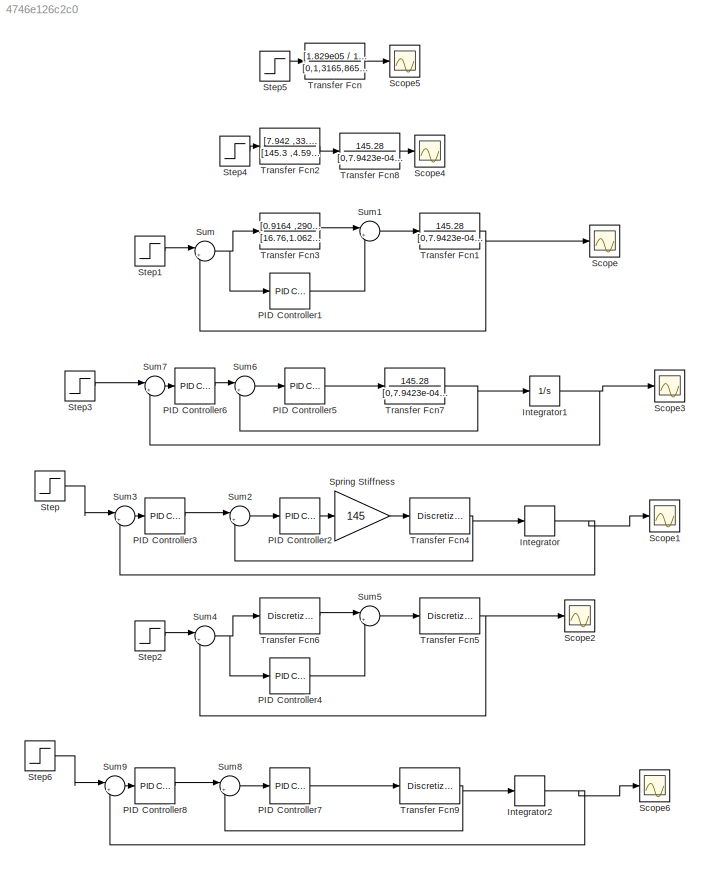
MODEL slx_4746e126c2c0
KIND model
CONFIG AbsTol = auto
CONFIG EnableMultiTasking = off
CONFIG FixedStep = auto
CONFIG MaxStep = auto
CONFIG MinStep = auto
CONFIG RelTol = 1e-3
CONFIG SampleTimeConstraint = Unconstrained
CONFIG Solver = VariableStepAuto
CONFIG SolverName = VariableStepAuto
CONFIG StartTime = 0.0
CONFIG StopTime = 10
BLOCK [DiscreteIntegrator] Integrator
  ICPrevOutput = DiscIntNeverNeededParam
  ICPrevScaledInput = DiscIntNeverNeededParam
  Ports = [1, 1]
  SampleTime = 0.01
BLOCK [Integrator] Integrator1
  Ports = [1, 1]
BLOCK [DiscreteIntegrator] Integrator2
  ICPrevOutput = DiscIntNeverNeededParam
  ICPrevScaledInput = DiscIntNeverNeededParam
  Ports = [1, 1]
  SampleTime = 0.01
BLOCK [Reference] PID Controller1  REF=simulink/Continuous/PID Controller
  Ports = [1, 1]
  SourceBlock = simulink/Continuous/PID Controller
  SourceType = PID 1dof
BLOCK [Reference] PID Controller2  REF=simulink/Continuous/PID Controller
  Ports = [1, 1]
  SourceBlock = simulink/Continuous/PID Controller
  SourceType = PID 1dof
BLOCK [Reference] PID Controller3  REF=simulink/Continuous/PID Controller
  Ports = [1, 1]
  SourceBlock = simulink/Continuous/PID Controller
  SourceType = PID 1dof
BLOCK [Reference] PID Controller4  REF=simulink/Continuous/PID Controller
  Ports = [1, 1]
  SourceBlock = simulink/Continuous/PID Controller
  SourceType = PID 1dof
BLOCK [Reference] PID Controller5  REF=simulink/Continuous/PID Controller
  Ports = [1, 1]
  SourceBlock = simulink/Continuous/PID Controller
  SourceType = PID 1dof
BLOCK [Reference] PID Controller6  REF=simulink/Continuous/PID Controller
  Ports = [1, 1]
  SourceBlock = simulink/Continuous/PID Controller
  SourceType = PID 1dof
BLOCK [Reference] PID Controller7  REF=simulink/Continuous/PID Controller
  Ports = [1, 1]
  SourceBlock = simulink/Continuous/PID Controller
  SourceType = PID 1dof
BLOCK [Reference] PID Controller8  REF=simulink/Continuous/PID Controller
  Ports = [1, 1]
  SourceBlock = simulink/Continuous/PID Controller
  SourceType = PID 1dof
BLOCK [Scope] Scope
  NumInputPorts = 1
  Ports = [1]
  ScopeSpecificationString = Simulink.scopes.TimeScopeBlockCfg('CurrentConfiguration', extmgr.ConfigurationSet(extmgr.Configuration('Core','General UI',true),extmgr.Configuration('Core','Source UI',true),extmgr.Configuration('Sources','WiredSimulink',true),extmgr.Configuration('Visuals','Time Domain',true,'SerializedDisplays',{struct('MinYLimReal','-129.19039','MaxYLimReal','1162.7135','YLabelReal','','MinYLimMag',' 0.00000',...<+1382ch>
BLOCK [Scope] Scope1
  NumInputPorts = 1
  Ports = [1]
  ScopeSpecificationString = Simulink.scopes.TimeScopeBlockCfg('CurrentConfiguration', extmgr.ConfigurationSet(extmgr.Configuration('Core','General UI',true),extmgr.Configuration('Core','Source UI',true),extmgr.Configuration('Sources','WiredSimulink',true,'DataLoggingVariableName','ScopeData1'),extmgr.Configuration('Visuals','Time Domain',true,'SerializedDisplays',{struct('MinYLimReal','-287.23276','MaxYLimReal','2585.09484',...<+1422ch>
BLOCK [Scope] Scope2
  NumInputPorts = 1
  Ports = [1]
  ScopeSpecificationString = Simulink.scopes.TimeScopeBlockCfg('CurrentConfiguration', extmgr.ConfigurationSet(extmgr.Configuration('Core','General UI',true),extmgr.Configuration('Core','Source UI',true),extmgr.Configuration('Sources','WiredSimulink',true,'DataLoggingVariableName','ScopeData1'),extmgr.Configuration('Visuals','Time Domain',true,'SerializedDisplays',{struct('MinYLimReal','-0.12786','MaxYLimReal','1.15076','YLab...<+1407ch>
BLOCK [Scope] Scope3
  NumInputPorts = 1
  Ports = [1]
  ScopeSpecificationString = Simulink.scopes.TimeScopeBlockCfg('CurrentConfiguration', extmgr.ConfigurationSet(extmgr.Configuration('Core','General UI',true),extmgr.Configuration('Core','Source UI',true),extmgr.Configuration('Sources','WiredSimulink',true,'DataLoggingVariableName','ScopeData2'),extmgr.Configuration('Visuals','Time Domain',true,'SerializedDisplays',{struct('MinYLimReal','-254.16461','MaxYLimReal','1487.25799',...<+1421ch>
BLOCK [Scope] Scope4
  NumInputPorts = 1
  Ports = [1]
  ScopeSpecificationString = Simulink.scopes.TimeScopeBlockCfg('CurrentConfiguration', extmgr.ConfigurationSet(extmgr.Configuration('Core','General UI',true),extmgr.Configuration('Core','Source UI',true),extmgr.Configuration('Sources','WiredSimulink',true,'DataLoggingVariableName','ScopeData1'),extmgr.Configuration('Visuals','Time Domain',true,'SerializedDisplays',{struct('MinYLimReal','-127.83792','MaxYLimReal','1150.54129',...<+1425ch>
BLOCK [Scope] Scope5
  NumInputPorts = 1
  Ports = [1]
  ScopeSpecificationString = Simulink.scopes.TimeScopeBlockCfg('CurrentConfiguration', extmgr.ConfigurationSet(extmgr.Configuration('Core','General UI',true),extmgr.Configuration('Core','Source UI',true),extmgr.Configuration('Sources','WiredSimulink',true,'DataLoggingVariableName','ScopeData2'),extmgr.Configuration('Visuals','Time Domain',true,'SerializedDisplays',{struct('MinYLimReal','-127.83792','MaxYLimReal','1150.54129',...<+1425ch>
BLOCK [Scope] Scope6
  NumInputPorts = 1
  Ports = [1]
  ScopeSpecificationString = Simulink.scopes.TimeScopeBlockCfg('CurrentConfiguration', extmgr.ConfigurationSet(extmgr.Configuration('Core','General UI',true),extmgr.Configuration('Core','Source UI',true),extmgr.Configuration('Sources','WiredSimulink',true,'DataLoggingVariableName','ScopeData1'),extmgr.Configuration('Visuals','Time Domain',true,'SerializedDisplays',{struct('MinYLimReal','-293.24046','MaxYLimReal','2639.13145',...<+1423ch>
BLOCK [Gain] Spring Stiffness
  Gain = 145
  OutDataTypeStr = Inherit: Inherit via internal rule
  ParamDataTypeStr = Inherit: Inherit via internal rule
  SaturateOnIntegerOverflow = off
BLOCK [Step] Step
  After = 2000
  SampleTime = 0.01
BLOCK [Step] Step1
  After = 1000
  SampleTime = 0
BLOCK [Step] Step2
  SampleTime = 0.04
BLOCK [Step] Step3
  After = 1000
  SampleTime = 0
BLOCK [Step] Step4
  After = 1000
  SampleTime = 0
BLOCK [Step] Step5
  After = 1000
  SampleTime = 0
BLOCK [Step] Step6
  After = 2000
  SampleTime = 0.01
BLOCK [Sum] Sum
  IconShape = round
  InputSameDT = off
  Inputs = |+-
  OutDataTypeStr = Inherit: Inherit via internal rule
  Ports = [2, 1]
  SaturateOnIntegerOverflow = off
BLOCK [Sum] Sum1
  IconShape = round
  InputSameDT = off
  Inputs = |++
  OutDataTypeStr = Inherit: Inherit via internal rule
  Ports = [2, 1]
  SaturateOnIntegerOverflow = off
BLOCK [Sum] Sum2
  IconShape = round
  InputSameDT = off
  Inputs = |+-
  OutDataTypeStr = Inherit: Inherit via internal rule
  Ports = [2, 1]
  SaturateOnIntegerOverflow = off
BLOCK [Sum] Sum3
  IconShape = round
  InputSameDT = off
  Inputs = |+-
  OutDataTypeStr = Inherit: Inherit via internal rule
  Ports = [2, 1]
  SaturateOnIntegerOverflow = off
BLOCK [Sum] Sum4
  IconShape = round
  InputSameDT = off
  Inputs = |+-
  OutDataTypeStr = Inherit: Inherit via internal rule
  Ports = [2, 1]
  SaturateOnIntegerOverflow = off
BLOCK [Sum] Sum5
  IconShape = round
  InputSameDT = off
  Inputs = |++
  OutDataTypeStr = Inherit: Inherit via internal rule
  Ports = [2, 1]
  SaturateOnIntegerOverflow = off
BLOCK [Sum] Sum6
  IconShape = round
  InputSameDT = off
  Inputs = |+-
  OutDataTypeStr = Inherit: Inherit via internal rule
  Ports = [2, 1]
  SaturateOnIntegerOverflow = off
BLOCK [Sum] Sum7
  IconShape = round
  InputSameDT = off
  Inputs = |+-
  OutDataTypeStr = Inherit: Inherit via internal rule
  Ports = [2, 1]
  SaturateOnIntegerOverflow = off
BLOCK [Sum] Sum8
  IconShape = round
  InputSameDT = off
  Inputs = |+-
  OutDataTypeStr = Inherit: Inherit via internal rule
  Ports = [2, 1]
  SaturateOnIntegerOverflow = off
BLOCK [Sum] Sum9
  IconShape = round
  InputSameDT = off
  Inputs = |+-
  OutDataTypeStr = Inherit: Inherit via internal rule
  Ports = [2, 1]
  SaturateOnIntegerOverflow = off
BLOCK [TransferFcn] Transfer Fcn
  Denominator = [0,1,3165,8653,1e04]
  Numerator = [1.829e05 / 18.29]
BLOCK [TransferFcn] Transfer Fcn1
  Denominator = [0,7.9423e-04,2*0.059068*0.028182,1,0]
  Numerator = 145.28
  SCDEnableBlockLinearizationSpecification = on
BLOCK [TransferFcn] Transfer Fcn2
  Denominator = [145.3 ,4.598e05,1.257e06 , 1.453e06]
  Numerator = [7.942  ,33.29  ,10000  ,0]
BLOCK [TransferFcn] Transfer Fcn3
  Denominator = [16.76,1.062e05 , 1.687e08 ,1.757e09 , 2.174e11 , 1.165e12 ,2.254e12 , 1.826e12  ]
  Numerator = [0.9164 ,2908 ,3.457e04 , 7.44e06,5.225e07,4.705e09 ,1.267e10, 1.453e10 ]
BLOCK [Reference] Transfer Fcn4  REF=discretizing/Discretized  (lib defined in mdl_5048aa1cd587)
Transfer Fcn
  Ports = [1, 1]
  SourceBlock = discretizing/Discretized\nTransfer Fcn
  SourceType = DiscretizedTransferFcn
BLOCK [Reference] Transfer Fcn5  REF=discretizing/Discretized  (lib defined in mdl_5048aa1cd587)
Transfer Fcn
  Ports = [1, 1]
  SourceBlock = discretizing/Discretized\nTransfer Fcn
  SourceType = DiscretizedTransferFcn
BLOCK [Reference] Transfer Fcn6  REF=discretizing/Discretized  (lib defined in mdl_5048aa1cd587)
Transfer Fcn
  Ports = [1, 1]
  SourceBlock = discretizing/Discretized\nTransfer Fcn
  SourceType = DiscretizedTransferFcn
BLOCK [TransferFcn] Transfer Fcn7
  Denominator = [0,7.9423e-04,2*0.059068*0.028182,1,0]
  Numerator = 145.28
  SCDEnableBlockLinearizationSpecification = on
BLOCK [TransferFcn] Transfer Fcn8
  Denominator = [0,7.9423e-04,2*0.059068*0.028182,1,0]
  Numerator = 145.28
BLOCK [Reference] Transfer Fcn9  REF=discretizing/Discretized  (lib defined in mdl_5048aa1cd587)
Transfer Fcn
  Ports = [1, 1]
  SourceBlock = discretizing/Discretized\nTransfer Fcn
  SourceType = DiscretizedTransferFcn
NET Integrator1:1 -> Scope3:1, Sum7:2
NET Integrator2:1 -> Scope6:1, Sum9:2
NET Integrator:1 -> Scope1:1, Sum3:2
LINE PID Controller1:1 -> Sum1:2
LINE PID Controller2:1 -> Spring Stiffness:1
LINE PID Controller3:1 -> Sum2:1
LINE PID Controller4:1 -> Sum5:2
LINE PID Controller5:1 -> Transfer Fcn7:1
LINE PID Controller6:1 -> Sum6:1
LINE PID Controller7:1 -> Transfer Fcn9:1
LINE PID Controller8:1 -> Sum8:1
LINE Spring Stiffness:1 -> Transfer Fcn4:1
LINE Step1:1 -> Sum:1
LINE Step2:1 -> Sum4:1
LINE Step3:1 -> Sum7:1
LINE Step4:1 -> Transfer Fcn2:1
LINE Step5:1 -> Transfer Fcn:1
LINE Step6:1 -> Sum9:1
LINE Step:1 -> Sum3:1
LINE Sum1:1 -> Transfer Fcn1:1
LINE Sum2:1 -> PID Controller2:1
LINE Sum3:1 -> PID Controller3:1
NET Sum4:1 -> PID Controller4:1, Transfer Fcn6:1
LINE Sum5:1 -> Transfer Fcn5:1
LINE Sum6:1 -> PID Controller5:1
LINE Sum7:1 -> PID Controller6:1
LINE Sum8:1 -> PID Controller7:1
LINE Sum9:1 -> PID Controller8:1
NET Sum:1 -> PID Controller1:1, Transfer Fcn3:1
NET Transfer Fcn1:1 -> Scope:1, Sum:2
LINE Transfer Fcn2:1 -> Transfer Fcn8:1
LINE Transfer Fcn3:1 -> Sum1:1
NET Transfer Fcn4:1 -> Integrator:1, Sum2:2
NET Transfer Fcn5:1 -> Scope2:1, Sum4:2
LINE Transfer Fcn6:1 -> Sum5:1
NET Transfer Fcn7:1 -> Integrator1:1, Sum6:2
LINE Transfer Fcn8:1 -> Scope4:1
NET Transfer Fcn9:1 -> Integrator2:1, Sum8:2
LINE Transfer Fcn:1 -> Scope5:1
note: NET lines group one-source signal fan-out (src -> all destinations, sorted); 1:1 wires keep LINE
